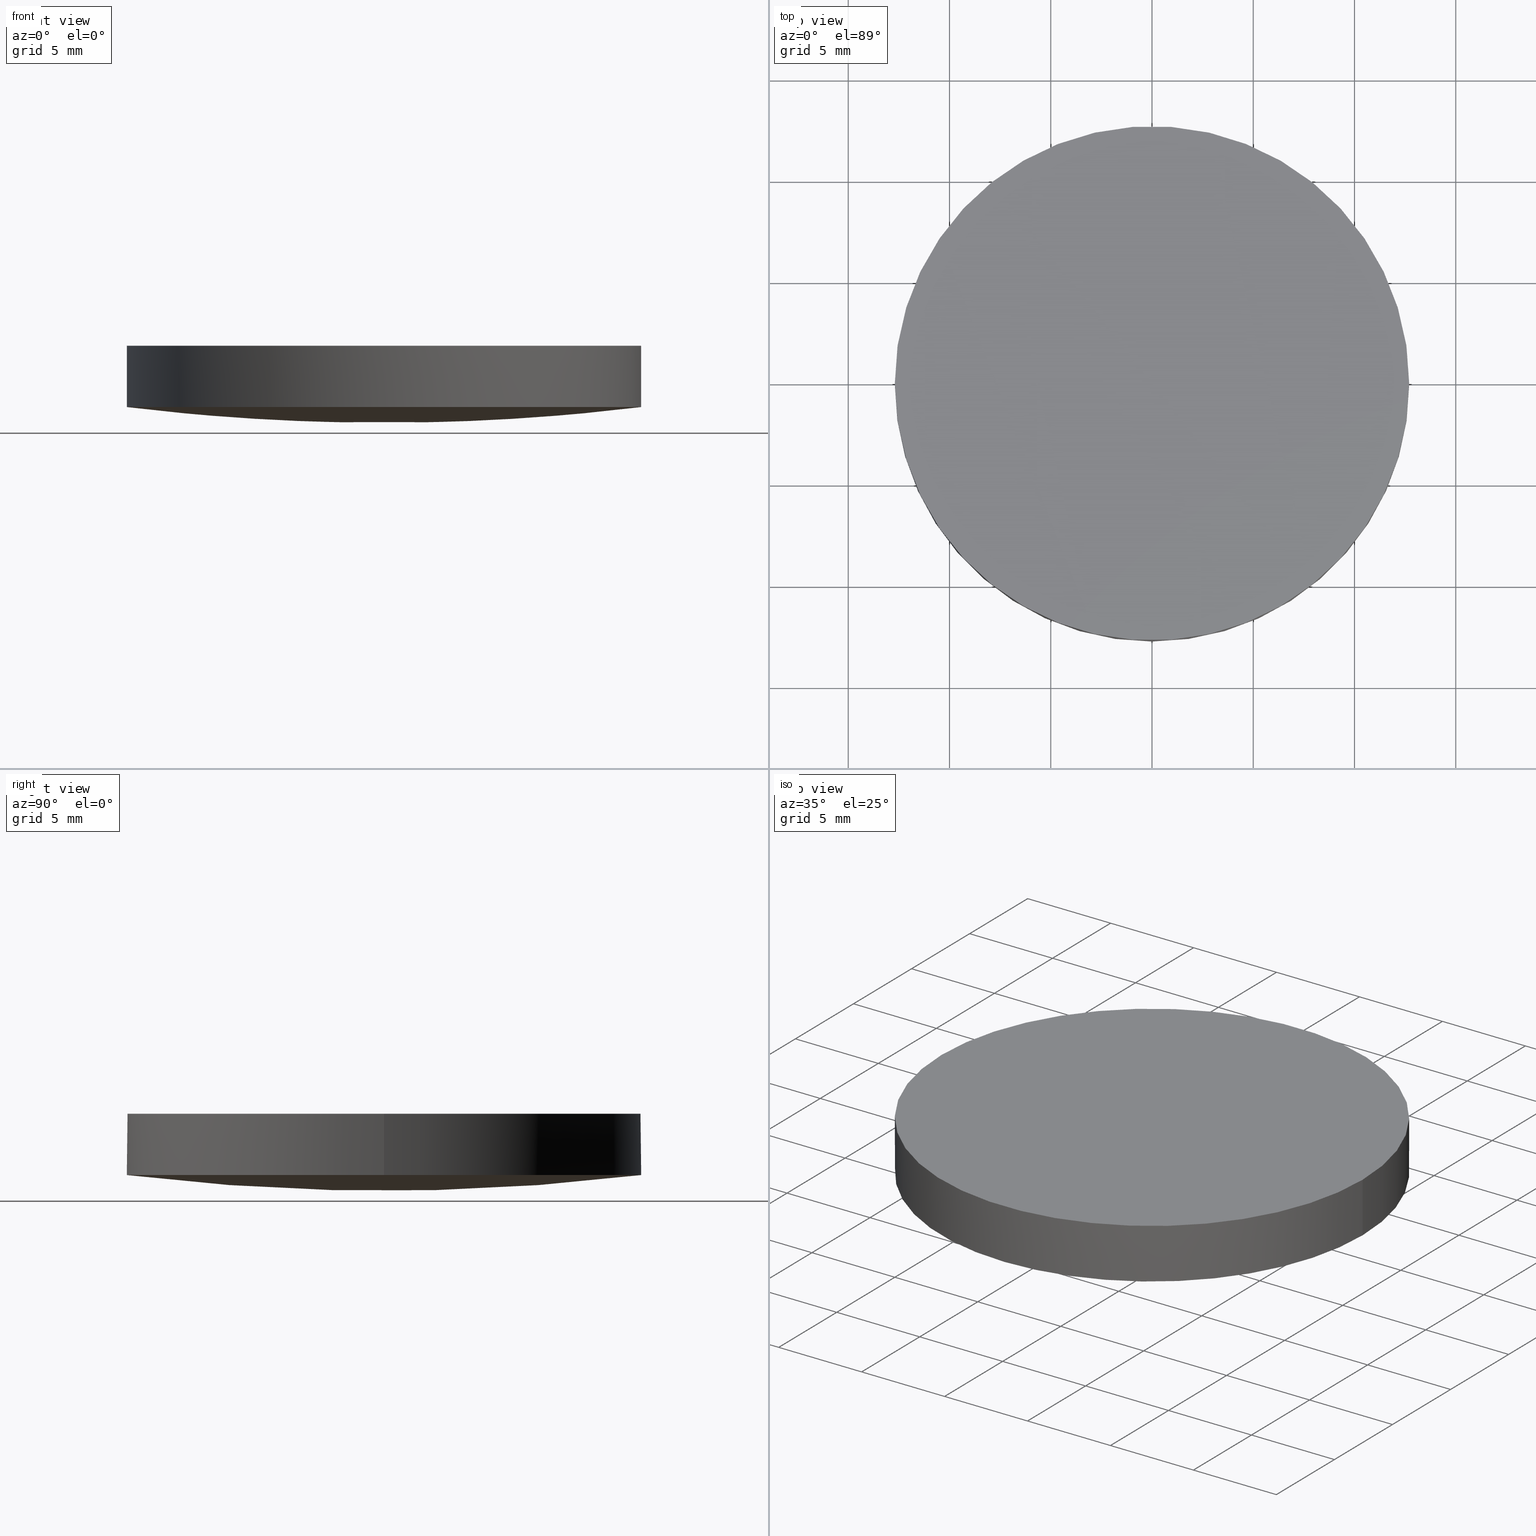
[diagram: canonical four-view strip — front | top / right | iso, engineering-drawing reading convention]
A machine part, canonical four-view strip (front | top / right | iso — engineering-drawing reading convention). The complete STEP part file that produces these views, byte-faithful:
ISO-10303-21;
HEADER;
FILE_DESCRIPTION (( 'STEP AP203' ),
    '1' );
FILE_NAME ('110-5221E CaF2 pl-cx 25.4 F250.STEP',
    '2019-01-03T08:27:43',
    ( '' ),
    ( '' ),
    'SwSTEP 2.0',
    'SolidWorks 2017',
    '' );
FILE_SCHEMA (( 'CONFIG_CONTROL_DESIGN' ));
ENDSEC;

DATA;
#1 = AXIS2_PLACEMENT_3D ( 'NONE', #111, #147, #37 ) ;
#2 = CARTESIAN_POINT ( 'NONE',  ( -7.141133360578974500E-015, 12.85163307389536200, 0.7925073641889823800 ) ) ;
#3 = DIRECTION ( 'NONE',  ( 0.0000000000000000000, 0.0000000000000000000, 1.000000000000000000 ) ) ;
#4 = CARTESIAN_POINT ( 'NONE',  ( 4.282779587646916600, 4.305625555928885200, -0.2655102227782195600 ) ) ;
#5 = EDGE_LOOP ( 'NONE', ( #163, #85, #60 ) ) ;
#6 = CARTESIAN_POINT ( 'NONE',  ( -7.187737991352404900E-015, 12.70000000000003700, 0.7738472252775887600 ) ) ;
#7 = AXIS2_PLACEMENT_3D ( 'NONE', #115, #167, #21 ) ;
#8 = ADVANCED_FACE ( 'NONE', ( #96 ), #22, .T. ) ;
#9 = PERSON_AND_ORGANIZATION_ROLE ( 'classification_officer' ) ;
#10 = APPLICATION_CONTEXT ( 'configuration controlled 3d designs of mechanical parts and assemblies' ) ;
#11 = CIRCLE ( 'NONE', #31, 12.69999999999999900 ) ;
#12 = PERSON_AND_ORGANIZATION_ROLE ( 'creator' ) ;
#13 = LOCAL_TIME ( 10, 27, 43.00000000000000000, #87 ) ;
#14 = APPROVAL ( #156, 'UNSPECIFIED' ) ;
#15 = PERSON_AND_ORGANIZATION ( #61, #99 ) ;
#16 = ORIENTED_EDGE ( 'NONE', *, *, #122, .F. ) ;
#17 = EDGE_CURVE ( 'NONE', #134, #123, #68, .T. ) ;
#18 = ADVANCED_BREP_SHAPE_REPRESENTATION ( '110-5221E CaF2 pl-cx 25.4 F250', ( #36, #63 ), #228 ) ;
#19 = ORIENTED_EDGE ( 'NONE', *, *, #122, .T. ) ;
#20 = CARTESIAN_POINT ( 'NONE',  ( 12.69999999999999900, 2.442490654175340100E-015, 0.7738472252775809900 ) ) ;
#21 = DIRECTION ( 'NONE',  ( 1.000000000000000000, 0.0000000000000000000, 0.0000000000000000000 ) ) ;
#22 = CYLINDRICAL_SURFACE ( 'NONE', #7, 12.69999999999999900 ) ;
#23 = LINE ( 'NONE', #133, #33 ) ;
#24 = FACE_OUTER_BOUND ( 'NONE', #216, .T. ) ;
#25 = CARTESIAN_POINT ( 'NONE',  ( 4.996003610813200500E-016, 2.442490654175340100E-015, 0.7738472252775809900 ) ) ;
#26 = CC_DESIGN_APPROVAL ( #14, ( #235 ) ) ;
#27 = DIRECTION ( 'NONE',  ( 1.000000000000000000, 0.0000000000000000000, -0.0000000000000000000 ) ) ;
#28 = APPLICATION_CONTEXT ( 'configuration controlled 3d designs of mechanical parts and assemblies' ) ;
#29 =( NAMED_UNIT ( * ) SI_UNIT ( $, .STERADIAN. ) SOLID_ANGLE_UNIT ( ) );
#30 = DATE_AND_TIME ( #127, #197 ) ;
#31 = AXIS2_PLACEMENT_3D ( 'NONE', #172, #148, #51 ) ;
#32 = ADVANCED_FACE ( 'NONE', ( #24 ), #206, .T. ) ;
#33 = VECTOR ( 'NONE', #77, 1000.000000000000000 ) ;
#34 = CC_DESIGN_PERSON_AND_ORGANIZATION_ASSIGNMENT ( #183, #101, ( #213 ) ) ;
#35 = CARTESIAN_POINT ( 'NONE',  ( 4.996003610813200500E-016, 2.442490654175340100E-015, 3.799999999999999800 ) ) ;
#36 = MANIFOLD_SOLID_BREP ( 'Imported1', #114 ) ;
#37 = DIRECTION ( 'NONE',  ( 1.000000000000000000, -8.881784197001252300E-016, 0.0000000000000000000 ) ) ;
#38 = DIRECTION ( 'NONE',  ( -0.0000000000000000000, -0.0000000000000000000, -1.000000000000000000 ) ) ;
#39 = EDGE_LOOP ( 'NONE', ( #104, #175, #49, #19, #128 ) ) ;
#40 = CARTESIAN_POINT ( 'NONE',  ( 4.282779587646913900, -4.305625555928871900, -0.2655102227782205600 ) ) ;
#41 = PRODUCT_RELATED_PRODUCT_CATEGORY ( 'detail', '', ( #138 ) ) ;
#42 = COORDINATED_UNIVERSAL_TIME_OFFSET ( 2, 0, .AHEAD. ) ;
#43 = COORDINATED_UNIVERSAL_TIME_OFFSET ( 2, 0, .AHEAD. ) ;
#44 = PERSON_AND_ORGANIZATION ( #61, #99 ) ;
#45 = VERTEX_POINT ( 'NONE', #70 ) ;
#46 = ORIENTED_EDGE ( 'NONE', *, *, #69, .F. ) ;
#47 = CC_DESIGN_DATE_AND_TIME_ASSIGNMENT ( #200, #208, ( #105 ) ) ;
#48 = DIRECTION ( 'NONE',  ( 1.000000000000000000, 0.0000000000000000000, 0.0000000000000000000 ) ) ;
#49 = ORIENTED_EDGE ( 'NONE', *, *, #86, .F. ) ;
#50 = PRODUCT_DEFINITION_SHAPE ( 'NONE', 'NONE',  #213 ) ;
#51 = DIRECTION ( 'NONE',  ( 1.000000000000000000, 8.881784197001252300E-016, 0.0000000000000000000 ) ) ;
#52 = CARTESIAN_POINT ( 'NONE',  ( 8.471195892815243800, 12.85163307389535900, 1.051903366798575500 ) ) ;
#53 = CARTESIAN_POINT ( 'NONE',  ( 0.0000000000000000000, 0.0000000000000000000, 0.0000000000000000000 ) ) ;
#54 = CARTESIAN_POINT ( 'NONE',  ( -3.989863994746656300E-014, -12.85163307389534600, 0.7925073641889719400 ) ) ;
#55 = CARTESIAN_POINT ( 'NONE',  ( -4.282779587646924600, -4.305625555928870100, -0.2655102227782278300 ) ) ;
#56 = EDGE_CURVE ( 'NONE', #45, #234, #230, .T. ) ;
#57 = APPLICATION_PROTOCOL_DEFINITION ( 'international standard', 'config_control_design', 1994, #10 ) ;
#58 = APPROVAL_DATE_TIME ( #71, #14 ) ;
#59 = CARTESIAN_POINT ( 'NONE',  ( -3.295974604355933500E-014, 12.85163307389536200, 0.7925073641889719400 ) ) ;
#60 = ORIENTED_EDGE ( 'NONE', *, *, #17, .T. ) ;
#61 = PERSON ( 'UNSPECIFIED', 'UNSPECIFIED', 'UNSPECIFIED', ('UNSPECIFIED'), ('UNSPECIFIED'), ('UNSPECIFIED') ) ;
#62 = SECURITY_CLASSIFICATION_LEVEL ( 'unclassified' ) ;
#63 = AXIS2_PLACEMENT_3D ( 'NONE', #53, #80, #82 ) ;
#64 = UNCERTAINTY_MEASURE_WITH_UNIT (LENGTH_MEASURE( 1.000000000000000100E-005 ), #210, 'distance_accuracy_value', 'NONE');
#65 = CALENDAR_DATE ( 2019, 3, 1 ) ;
#66 = CIRCLE ( 'NONE', #232, 12.69999999999999900 ) ;
#67 = PERSON_AND_ORGANIZATION ( #61, #99 ) ;
#68 = CIRCLE ( 'NONE', #1, 12.69999999999999900 ) ;
#69 = EDGE_CURVE ( 'NONE', #152, #134, #11, .T. ) ;
#70 = CARTESIAN_POINT ( 'NONE',  ( 12.69999999999999900, 2.442490654175340100E-015, 3.799999999999999800 ) ) ;
#71 = DATE_AND_TIME ( #161, #231 ) ;
#72 = FACE_OUTER_BOUND ( 'NONE', #5, .T. ) ;
#73 = DIRECTION ( 'NONE',  ( -0.0000000000000000000, -0.0000000000000000000, -1.000000000000000000 ) ) ;
#74 = CARTESIAN_POINT ( 'NONE',  ( 8.557535269768374400, -4.305625555928873600, -0.003470427068712200700 ) ) ;
#75 = CC_DESIGN_PERSON_AND_ORGANIZATION_ASSIGNMENT ( #91, #160, ( #138 ) ) ;
#76 = CARTESIAN_POINT ( 'NONE',  ( -8.471195892815204700, -12.85163307389534500, 1.051903366798569600 ) ) ;
#77 = DIRECTION ( 'NONE',  ( 0.0000000000000000000, 0.0000000000000000000, 1.000000000000000000 ) ) ;
#78 = MECHANICAL_CONTEXT ( 'NONE', #28, 'mechanical' ) ;
#79 = LOCAL_TIME ( 10, 27, 43.00000000000000000, #42 ) ;
#80 = DIRECTION ( 'NONE',  ( 0.0000000000000000000, 0.0000000000000000000, 1.000000000000000000 ) ) ;
#81 = EDGE_CURVE ( 'NONE', #234, #45, #187, .T. ) ;
#82 = DIRECTION ( 'NONE',  ( 1.000000000000000000, 0.0000000000000000000, 0.0000000000000000000 ) ) ;
#83 = CARTESIAN_POINT ( 'NONE',  ( -3.642919299551294900E-014, 4.305625555928887000, -0.2655102227782291100 ) ) ;
#84 = CARTESIAN_POINT ( 'NONE',  ( -12.80824930132938300, 4.305625555928890500, 0.5196272868001348100 ) ) ;
#85 = ORIENTED_EDGE ( 'NONE', *, *, #217, .T. ) ;
#86 = EDGE_CURVE ( 'NONE', #123, #165, #66, .T. ) ;
#87 = COORDINATED_UNIVERSAL_TIME_OFFSET ( 2, 0, .AHEAD. ) ;
#88 = ORIENTED_EDGE ( 'NONE', *, *, #81, .F. ) ;
#89 = APPROVAL ( #181, 'UNSPECIFIED' ) ;
#90 = CARTESIAN_POINT ( 'NONE',  ( 4.996003610813200500E-016, 2.442490654175340100E-015, 0.7738472252775809900 ) ) ;
#91 = PERSON_AND_ORGANIZATION ( #61, #99 ) ;
#92 = AXIS2_PLACEMENT_3D ( 'NONE', #223, #3, #27 ) ;
#93 =( BOUNDED_SURFACE ( )  B_SPLINE_SURFACE ( 3, 3, ( 
 ( #135, #153, #188, #119 ),
 ( #219, #40, #74, #116 ),
 ( #94, #4, #118, #136 ),
 ( #2, #178, #52, #199 ) ),
 .UNSPECIFIED., .F., .F., .F. ) 
 B_SPLINE_SURFACE_WITH_KNOTS ( ( 4, 4 ),
 ( 4, 4 ),
 ( 0.0000000000000000000, 1.000000000000000000 ),
 ( 0.0000000000000000000, 1.000000000000000000 ),
 .UNSPECIFIED. ) 
 GEOMETRIC_REPRESENTATION_ITEM ( )  RATIONAL_B_SPLINE_SURFACE ( (
 ( 1.000000000000000000, 0.9987509816368461700, 0.9987509816368461700, 1.000000000000000000),
 ( 0.9949489651740663900, 0.9937062556461631100, 0.9937062556461631100, 0.9949489651740663900),
 ( 0.9949489651740663900, 0.9937062556461631100, 0.9937062556461631100, 0.9949489651740663900),
 ( 1.000000000000000000, 0.9987509816368461700, 0.9987509816368461700, 1.000000000000000000) ) ) 
 REPRESENTATION_ITEM ( '' )  SURFACE ( )  );
#94 = CARTESIAN_POINT ( 'NONE',  ( -9.769281548708849800E-015, 4.305625555928887000, -0.2655102227782184500 ) ) ;
#95 = CARTESIAN_POINT ( 'NONE',  ( -1.424402699795791500E-014, -12.70000000000002100, 0.7738472252775887600 ) ) ;
#96 = FACE_OUTER_BOUND ( 'NONE', #39, .T. ) ;
#97 = DIRECTION ( 'NONE',  ( 0.0000000000000000000, 0.0000000000000000000, 1.000000000000000000 ) ) ;
#98 = APPROVAL_STATUS ( 'not_yet_approved' ) ;
#99 = ORGANIZATION ( 'UNSPECIFIED', 'UNSPECIFIED', '' ) ;
#100 = CARTESIAN_POINT ( 'NONE',  ( -8.471195892815197600, 12.85163307389536200, 1.051903366798569600 ) ) ;
#101 = PERSON_AND_ORGANIZATION_ROLE ( 'creator' ) ;
#102 = CC_DESIGN_DATE_AND_TIME_ASSIGNMENT ( #30, #140, ( #213 ) ) ;
#103 = APPROVAL_DATE_TIME ( #151, #202 ) ;
#104 = ORIENTED_EDGE ( 'NONE', *, *, #194, .F. ) ;
#105 = SECURITY_CLASSIFICATION ( '', '', #62 ) ;
#106 = CALENDAR_DATE ( 2019, 3, 1 ) ;
#107 = ORIENTED_EDGE ( 'NONE', *, *, #217, .F. ) ;
#108 = PERSON_AND_ORGANIZATION ( #61, #99 ) ;
#109 = LINE ( 'NONE', #146, #218 ) ;
#110 =( BOUNDED_SURFACE ( )  B_SPLINE_SURFACE ( 3, 3, ( 
 ( #176, #76, #189, #54 ),
 ( #190, #221, #55, #155 ),
 ( #84, #124, #125, #83 ),
 ( #141, #100, #191, #59 ) ),
 .UNSPECIFIED., .F., .F., .T. ) 
 B_SPLINE_SURFACE_WITH_KNOTS ( ( 4, 4 ),
 ( 4, 4 ),
 ( 0.0000000000000000000, 1.000000000000000000 ),
 ( 0.0000000000000000000, 1.000000000000000000 ),
 .UNSPECIFIED. ) 
 GEOMETRIC_REPRESENTATION_ITEM ( )  RATIONAL_B_SPLINE_SURFACE ( (
 ( 1.000000000000000000, 0.9987509816368461700, 0.9987509816368461700, 1.000000000000000000),
 ( 0.9949489651740663900, 0.9937062556461631100, 0.9937062556461631100, 0.9949489651740663900),
 ( 0.9949489651740663900, 0.9937062556461631100, 0.9937062556461631100, 0.9949489651740663900),
 ( 1.000000000000000000, 0.9987509816368461700, 0.9987509816368461700, 1.000000000000000000) ) ) 
 REPRESENTATION_ITEM ( '' )  SURFACE ( )  );
#111 = CARTESIAN_POINT ( 'NONE',  ( 4.996003610813200500E-016, 2.442490654175340100E-015, 0.7738472252775809900 ) ) ;
#112 = DIRECTION ( 'NONE',  ( 0.0000000000000000000, 0.0000000000000000000, 1.000000000000000000 ) ) ;
#113 = COORDINATED_UNIVERSAL_TIME_OFFSET ( 2, 0, .AHEAD. ) ;
#114 = CLOSED_SHELL ( 'NONE', ( #209, #32, #229, #8, #193 ) ) ;
#115 = CARTESIAN_POINT ( 'NONE',  ( 4.996003610813200500E-016, 2.442490654175340100E-015, 0.7738472252775809900 ) ) ;
#116 = CARTESIAN_POINT ( 'NONE',  ( 12.80824930132946300, -4.305625555928874500, 0.5196272868001470300 ) ) ;
#117 = CARTESIAN_POINT ( 'NONE',  ( 4.996003610813200500E-016, 2.442490654175340100E-015, 0.7738472252775809900 ) ) ;
#118 = CARTESIAN_POINT ( 'NONE',  ( 8.557535269768378000, 4.305625555928883400, -0.003470427068711117400 ) ) ;
#119 = CARTESIAN_POINT ( 'NONE',  ( 12.67902327658330600, -12.85163307389535000, 1.569723400905997000 ) ) ;
#120 = PERSON_AND_ORGANIZATION ( #61, #99 ) ;
#121 = DATE_AND_TIME ( #174, #215 ) ;
#122 = EDGE_CURVE ( 'NONE', #123, #45, #109, .T. ) ;
#123 = VERTEX_POINT ( 'NONE', #20 ) ;
#124 = CARTESIAN_POINT ( 'NONE',  ( -8.557535269768337100, 4.305625555928888700, -0.003470427068716972100 ) ) ;
#125 = CARTESIAN_POINT ( 'NONE',  ( -4.282779587646920100, 4.305625555928887000, -0.2655102227782270000 ) ) ;
#126 = ORIENTED_EDGE ( 'NONE', *, *, #17, .F. ) ;
#127 = CALENDAR_DATE ( 2019, 3, 1 ) ;
#128 = ORIENTED_EDGE ( 'NONE', *, *, #56, .T. ) ;
#129 = AXIS2_PLACEMENT_3D ( 'NONE', #35, #168, #132 ) ;
#130 = CC_DESIGN_PERSON_AND_ORGANIZATION_ASSIGNMENT ( #120, #159, ( #235 ) ) ;
#131 = AXIS2_PLACEMENT_3D ( 'NONE', #117, #38, #173 ) ;
#132 = DIRECTION ( 'NONE',  ( 1.000000000000000000, 0.0000000000000000000, 0.0000000000000000000 ) ) ;
#133 = CARTESIAN_POINT ( 'NONE',  ( -12.69999999999999900, 3.997792089092478900E-015, 0.7738472252775809900 ) ) ;
#134 = VERTEX_POINT ( 'NONE', #6 ) ;
#135 = CARTESIAN_POINT ( 'NONE',  ( -1.428167172091404300E-014, -12.85163307389534600, 0.7925073641889823800 ) ) ;
#136 = CARTESIAN_POINT ( 'NONE',  ( 12.80824930132946300, 4.305625555928883400, 0.5196272868001481400 ) ) ;
#137 = CARTESIAN_POINT ( 'NONE',  ( 4.996003610813200500E-016, 2.442490654175340100E-015, 3.799999999999999800 ) ) ;
#138 = PRODUCT ( '110-5221E CaF2 pl-cx 25.4 F250', '110-5221E CaF2 pl-cx 25.4 F250', '', ( #78 ) ) ;
#139 = FACE_OUTER_BOUND ( 'NONE', #164, .T. ) ;
#140 = DATE_TIME_ROLE ( 'creation_date' ) ;
#141 = CARTESIAN_POINT ( 'NONE',  ( -12.67902327658322600, 12.85163307389536400, 1.569723400905984200 ) ) ;
#142 = APPROVAL_PERSON_ORGANIZATION ( #67, #14, #207 ) ;
#143 = AXIS2_PLACEMENT_3D ( 'NONE', #186, #198, #150 ) ;
#144 = APPROVAL_PERSON_ORGANIZATION ( #108, #202, #227 ) ;
#145 = ORIENTED_EDGE ( 'NONE', *, *, #81, .T. ) ;
#146 = CARTESIAN_POINT ( 'NONE',  ( 12.69999999999999900, 2.442490654175340100E-015, 0.7738472252775809900 ) ) ;
#147 = DIRECTION ( 'NONE',  ( -0.0000000000000000000, -0.0000000000000000000, -1.000000000000000000 ) ) ;
#148 = DIRECTION ( 'NONE',  ( -0.0000000000000000000, -0.0000000000000000000, -1.000000000000000000 ) ) ;
#149 = DIRECTION ( 'NONE',  ( 1.000000000000000000, 0.0000000000000000000, 0.0000000000000000000 ) ) ;
#150 = DIRECTION ( 'NONE',  ( -2.778066538033659800E-016, -1.000000000000000000, 0.0000000000000000000 ) ) ;
#151 = DATE_AND_TIME ( #106, #13 ) ;
#152 = VERTEX_POINT ( 'NONE', #196 ) ;
#153 = CARTESIAN_POINT ( 'NONE',  ( 4.239569421452055000, -12.85163307389534800, 0.7925073641889814900 ) ) ;
#154 = CC_DESIGN_PERSON_AND_ORGANIZATION_ASSIGNMENT ( #15, #12, ( #235 ) ) ;
#155 = CARTESIAN_POINT ( 'NONE',  ( -3.989863994746655700E-014, -4.305625555928871000, -0.2655102227782299400 ) ) ;
#156 = APPROVAL_STATUS ( 'not_yet_approved' ) ;
#157 = PERSON_AND_ORGANIZATION ( #61, #99 ) ;
#158 = ORIENTED_EDGE ( 'NONE', *, *, #204, .T. ) ;
#159 = PERSON_AND_ORGANIZATION_ROLE ( 'design_supplier' ) ;
#160 = PERSON_AND_ORGANIZATION_ROLE ( 'design_owner' ) ;
#161 = CALENDAR_DATE ( 2019, 3, 1 ) ;
#162 = CC_DESIGN_PERSON_AND_ORGANIZATION_ASSIGNMENT ( #157, #9, ( #105 ) ) ;
#163 = ORIENTED_EDGE ( 'NONE', *, *, #86, .T. ) ;
#164 = EDGE_LOOP ( 'NONE', ( #107, #158, #184 ) ) ;
#165 = VERTEX_POINT ( 'NONE', #95 ) ;
#166 = DESIGN_CONTEXT ( 'detailed design', #10, 'design' ) ;
#167 = DIRECTION ( 'NONE',  ( 0.0000000000000000000, 0.0000000000000000000, 1.000000000000000000 ) ) ;
#168 = DIRECTION ( 'NONE',  ( -0.0000000000000000000, -0.0000000000000000000, -1.000000000000000000 ) ) ;
#169 = APPROVAL_PERSON_ORGANIZATION ( #44, #89, #225 ) ;
#170 = EDGE_LOOP ( 'NONE', ( #212, #88 ) ) ;
#171 = AXIS2_PLACEMENT_3D ( 'NONE', #137, #201, #220 ) ;
#172 = CARTESIAN_POINT ( 'NONE',  ( 4.996003610813200500E-016, 2.442490654175340100E-015, 0.7738472252775809900 ) ) ;
#173 = DIRECTION ( 'NONE',  ( 1.000000000000000000, 0.0000000000000000000, 0.0000000000000000000 ) ) ;
#174 = CALENDAR_DATE ( 2019, 3, 1 ) ;
#175 = ORIENTED_EDGE ( 'NONE', *, *, #204, .F. ) ;
#176 = CARTESIAN_POINT ( 'NONE',  ( -12.67902327658323400, -12.85163307389534300, 1.569723400905984200 ) ) ;
#177 = CC_DESIGN_SECURITY_CLASSIFICATION ( #105, ( #235 ) ) ;
#178 = CARTESIAN_POINT ( 'NONE',  ( 4.239569421452062100, 12.85163307389535900, 0.7925073641889814900 ) ) ;
#179 = CARTESIAN_POINT ( 'NONE',  ( -12.69999999999999900, 3.997792089092478900E-015, 3.799999999999999800 ) ) ;
#180 =( NAMED_UNIT ( * ) PLANE_ANGLE_UNIT ( ) SI_UNIT ( $, .RADIAN. ) );
#181 = APPROVAL_STATUS ( 'not_yet_approved' ) ;
#182 = FACE_OUTER_BOUND ( 'NONE', #170, .T. ) ;
#183 = PERSON_AND_ORGANIZATION ( #61, #99 ) ;
#184 = ORIENTED_EDGE ( 'NONE', *, *, #69, .T. ) ;
#185 = CIRCLE ( 'NONE', #143, 104.5999999999999900 ) ;
#186 = CARTESIAN_POINT ( 'NONE',  ( 1.421085471520200100E-014, 1.421085471520200100E-014, 104.5999999999999900 ) ) ;
#187 = CIRCLE ( 'NONE', #171, 12.69999999999999900 ) ;
#188 = CARTESIAN_POINT ( 'NONE',  ( 8.471195892815234900, -12.85163307389534800, 1.051903366798575500 ) ) ;
#189 = CARTESIAN_POINT ( 'NONE',  ( -4.239569421452067400, -12.85163307389534500, 0.7925073641889740500 ) ) ;
#190 = CARTESIAN_POINT ( 'NONE',  ( -12.80824930132938600, -4.305625555928867400, 0.5196272868001337000 ) ) ;
#191 = CARTESIAN_POINT ( 'NONE',  ( -4.239569421452060300, 12.85163307389536200, 0.7925073641889740500 ) ) ;
#192 = AXIS2_PLACEMENT_3D ( 'NONE', #90, #112, #48 ) ;
#193 = ADVANCED_FACE ( 'NONE', ( #182 ), #203, .T. ) ;
#194 = EDGE_CURVE ( 'NONE', #152, #234, #23, .T. ) ;
#195 = ORIENTED_EDGE ( 'NONE', *, *, #194, .T. ) ;
#196 = CARTESIAN_POINT ( 'NONE',  ( -12.69999999999999900, 3.997792089092478900E-015, 0.7738472252775809900 ) ) ;
#197 = LOCAL_TIME ( 10, 27, 43.00000000000000000, #113 ) ;
#198 = DIRECTION ( 'NONE',  ( 1.000000000000000000, -2.778066538033659800E-016, -2.400814875991999800E-016 ) ) ;
#199 = CARTESIAN_POINT ( 'NONE',  ( 12.67902327658331400, 12.85163307389535900, 1.569723400905997000 ) ) ;
#200 = DATE_AND_TIME ( #65, #79 ) ;
#201 = DIRECTION ( 'NONE',  ( -0.0000000000000000000, -0.0000000000000000000, -1.000000000000000000 ) ) ;
#202 = APPROVAL ( #98, 'UNSPECIFIED' ) ;
#203 = PLANE ( 'NONE',  #92 ) ;
#204 = EDGE_CURVE ( 'NONE', #165, #152, #224, .T. ) ;
#205 = APPROVAL_DATE_TIME ( #121, #89 ) ;
#206 = CYLINDRICAL_SURFACE ( 'NONE', #192, 12.69999999999999900 ) ;
#207 = APPROVAL_ROLE ( '' ) ;
#208 = DATE_TIME_ROLE ( 'classification_date' ) ;
#209 = ADVANCED_FACE ( 'NONE', ( #72 ), #93, .T. ) ;
#210 =( LENGTH_UNIT ( ) NAMED_UNIT ( * ) SI_UNIT ( .MILLI., .METRE. ) );
#211 = CC_DESIGN_APPROVAL ( #202, ( #105 ) ) ;
#212 = ORIENTED_EDGE ( 'NONE', *, *, #56, .F. ) ;
#213 = PRODUCT_DEFINITION ( 'UNKNOWN', '', #235, #166 ) ;
#214 = SHAPE_DEFINITION_REPRESENTATION ( #50, #18 ) ;
#215 = LOCAL_TIME ( 10, 27, 43.00000000000000000, #233 ) ;
#216 = EDGE_LOOP ( 'NONE', ( #46, #195, #145, #16, #126 ) ) ;
#217 = EDGE_CURVE ( 'NONE', #165, #134, #185, .T. ) ;
#218 = VECTOR ( 'NONE', #97, 1000.000000000000000 ) ;
#219 = CARTESIAN_POINT ( 'NONE',  ( -1.216154440515456900E-014, -4.305625555928871000, -0.2655102227782195600 ) ) ;
#220 = DIRECTION ( 'NONE',  ( 1.000000000000000000, 0.0000000000000000000, 0.0000000000000000000 ) ) ;
#221 = CARTESIAN_POINT ( 'NONE',  ( -8.557535269768340700, -4.305625555928868300, -0.003470427068718163900 ) ) ;
#222 = CC_DESIGN_APPROVAL ( #89, ( #213 ) ) ;
#223 = CARTESIAN_POINT ( 'NONE',  ( 0.0000000000000000000, 26.11199999999999800, 3.799999999999999800 ) ) ;
#224 = CIRCLE ( 'NONE', #131, 12.69999999999999900 ) ;
#225 = APPROVAL_ROLE ( '' ) ;
#226 = APPLICATION_PROTOCOL_DEFINITION ( 'international standard', 'config_control_design', 1994, #28 ) ;
#227 = APPROVAL_ROLE ( '' ) ;
#228 =( GEOMETRIC_REPRESENTATION_CONTEXT ( 3 ) GLOBAL_UNCERTAINTY_ASSIGNED_CONTEXT ( ( #64 ) ) GLOBAL_UNIT_ASSIGNED_CONTEXT ( ( #210, #180, #29 ) ) REPRESENTATION_CONTEXT ( 'NONE', 'WORKASPACE' ) );
#229 = ADVANCED_FACE ( 'NONE', ( #139 ), #110, .T. ) ;
#230 = CIRCLE ( 'NONE', #129, 12.69999999999999900 ) ;
#231 = LOCAL_TIME ( 10, 27, 43.00000000000000000, #43 ) ;
#232 = AXIS2_PLACEMENT_3D ( 'NONE', #25, #73, #149 ) ;
#233 = COORDINATED_UNIVERSAL_TIME_OFFSET ( 2, 0, .AHEAD. ) ;
#234 = VERTEX_POINT ( 'NONE', #179 ) ;
#235 = PRODUCT_DEFINITION_FORMATION_WITH_SPECIFIED_SOURCE ( 'ANY', '', #138, .NOT_KNOWN. ) ;
ENDSEC;
END-ISO-10303-21;
